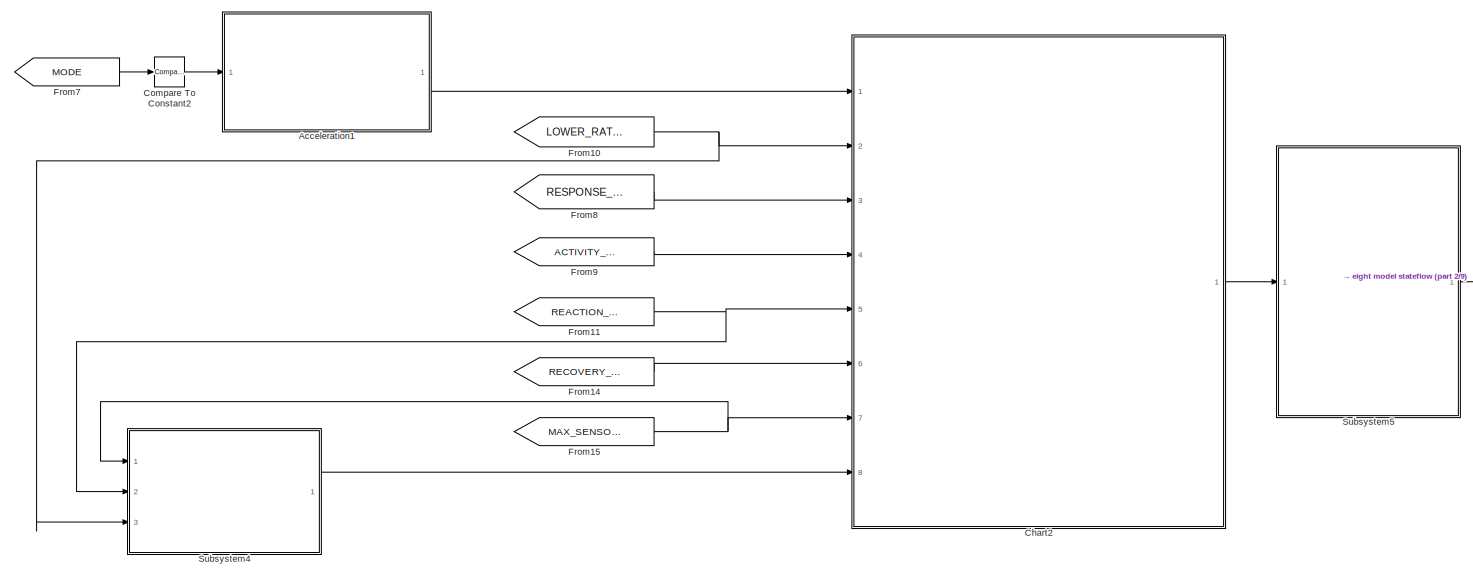
[diagram: root canvas - part 1/9, top center region]
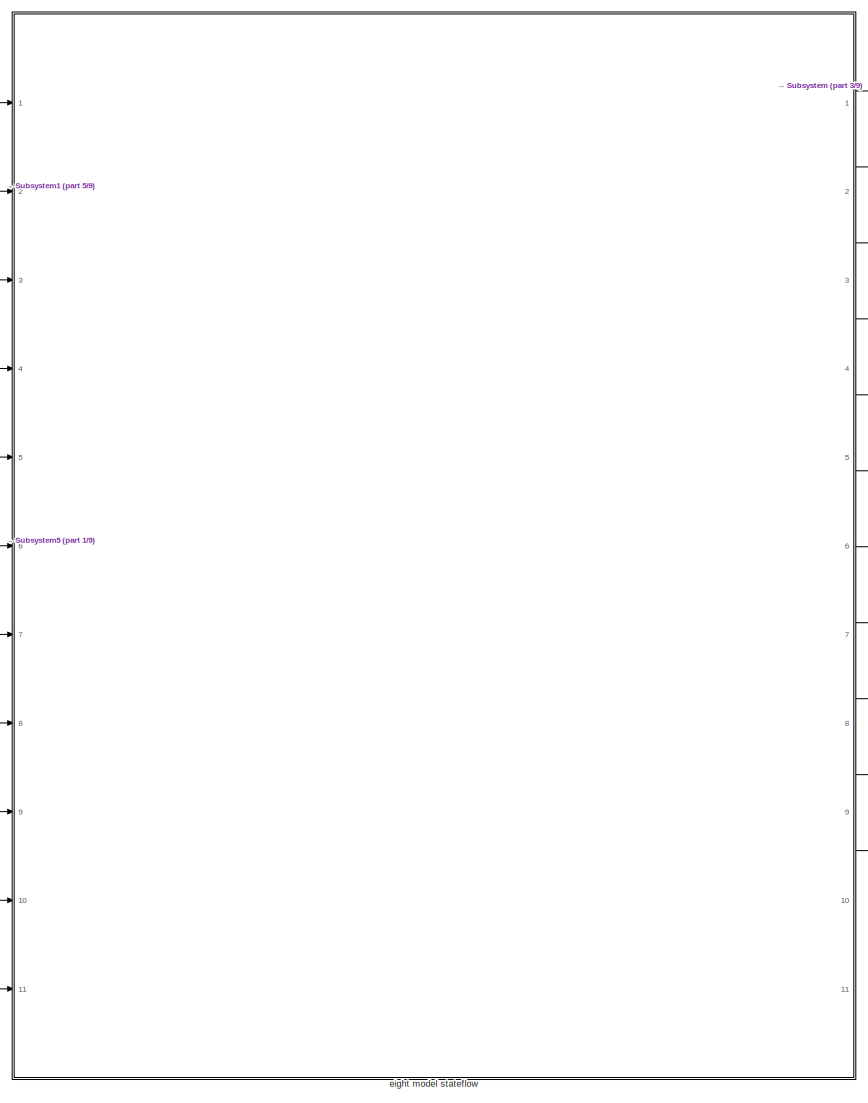
[diagram: root canvas - part 2/9, middle right region]
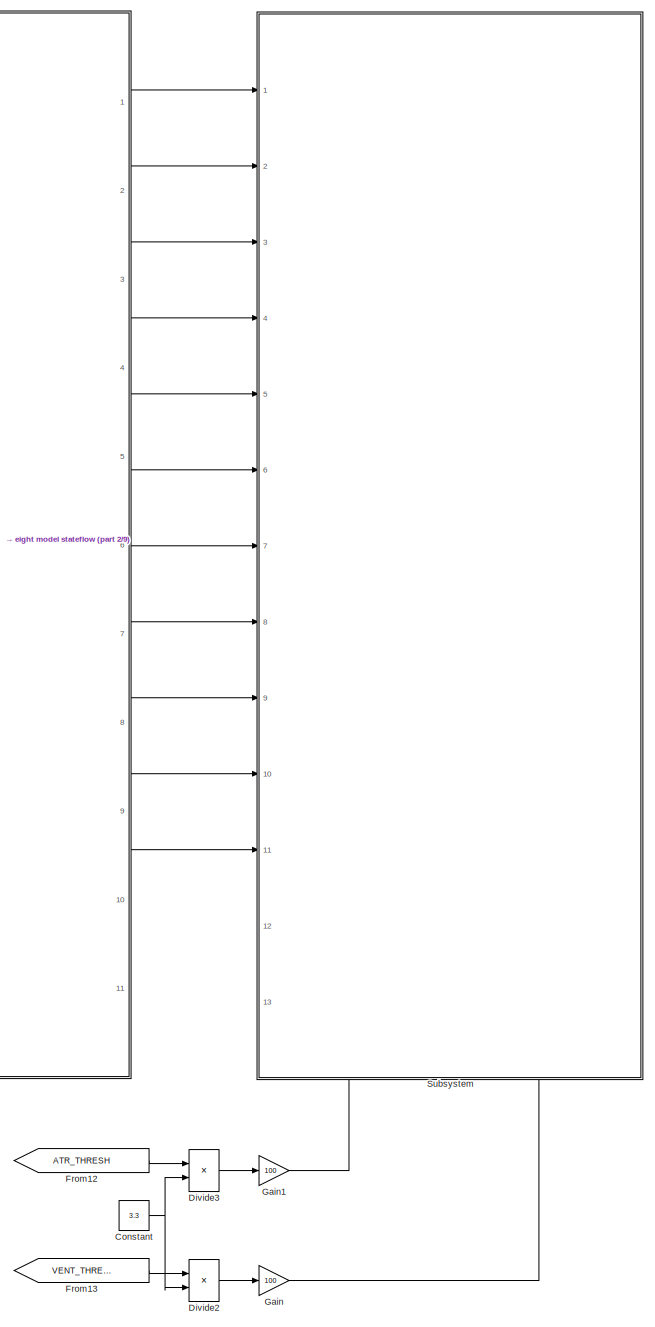
[diagram: root canvas - part 3/9, middle right region]
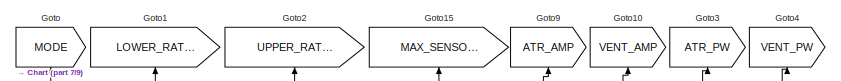
[diagram: root canvas - part 4/9, top left region]
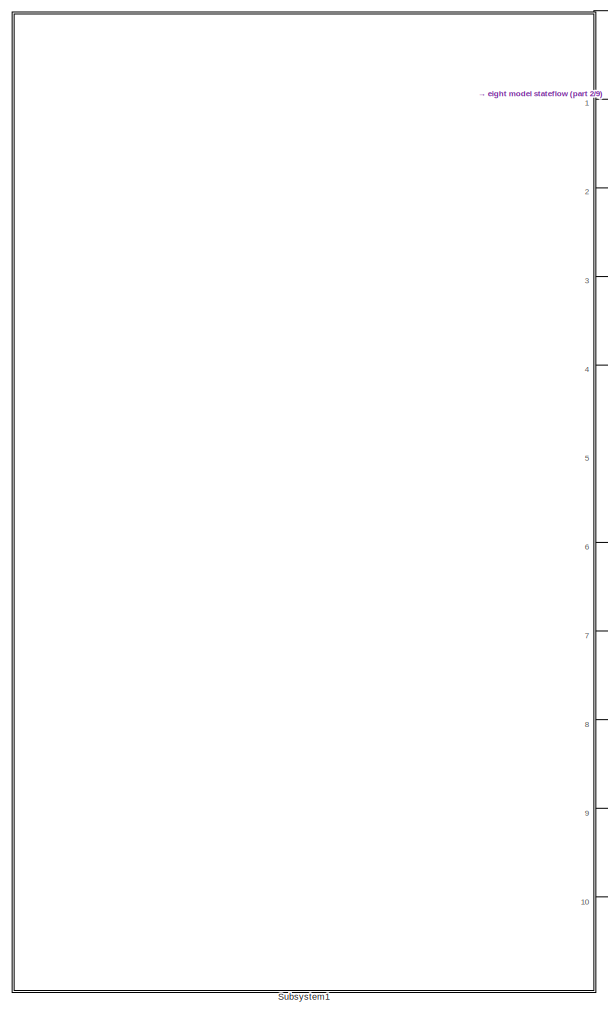
[diagram: root canvas - part 5/9, central region]
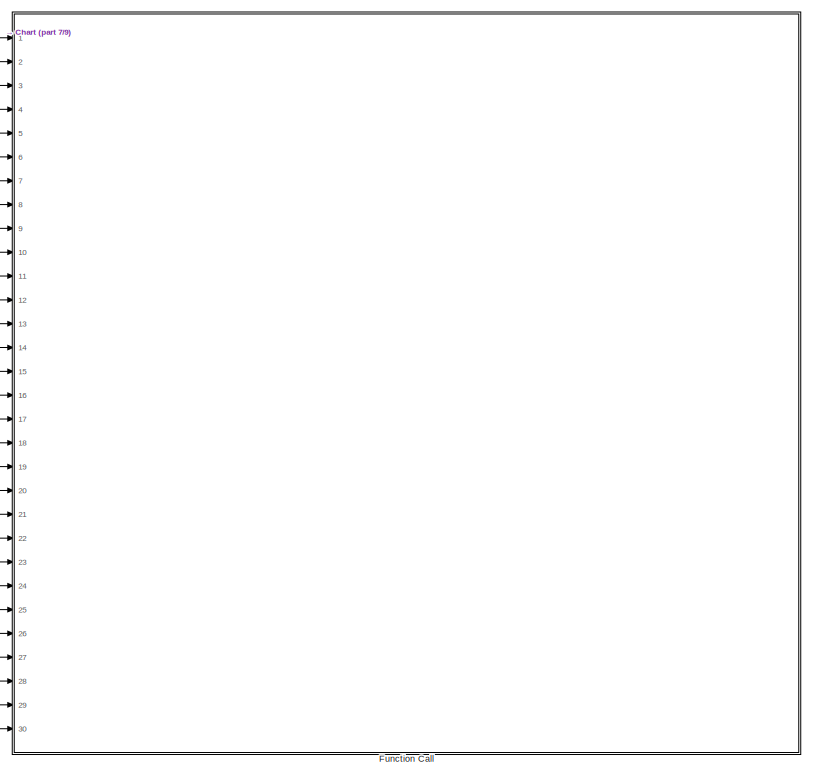
[diagram: root canvas - part 6/9, central region]
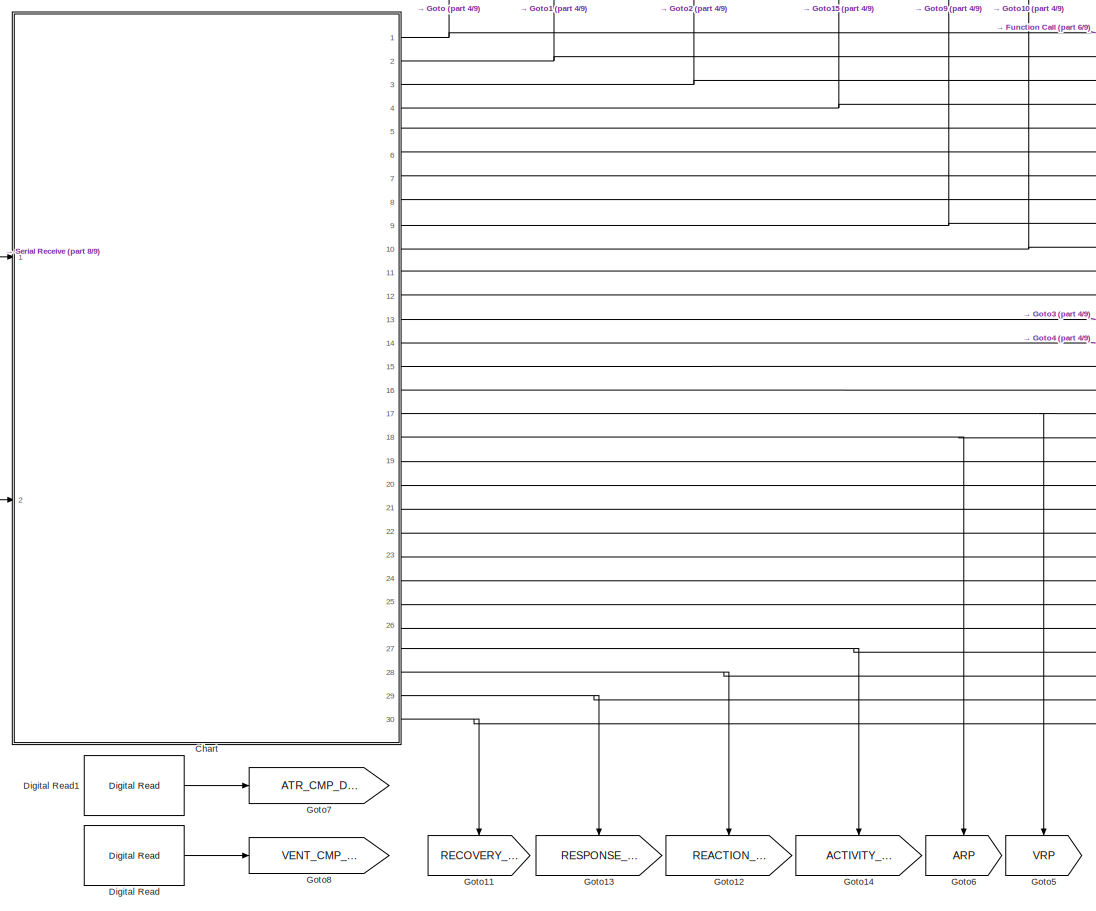
[diagram: root canvas - part 7/9, middle left region]
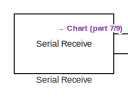
[diagram: root canvas - part 8/9, middle left region]
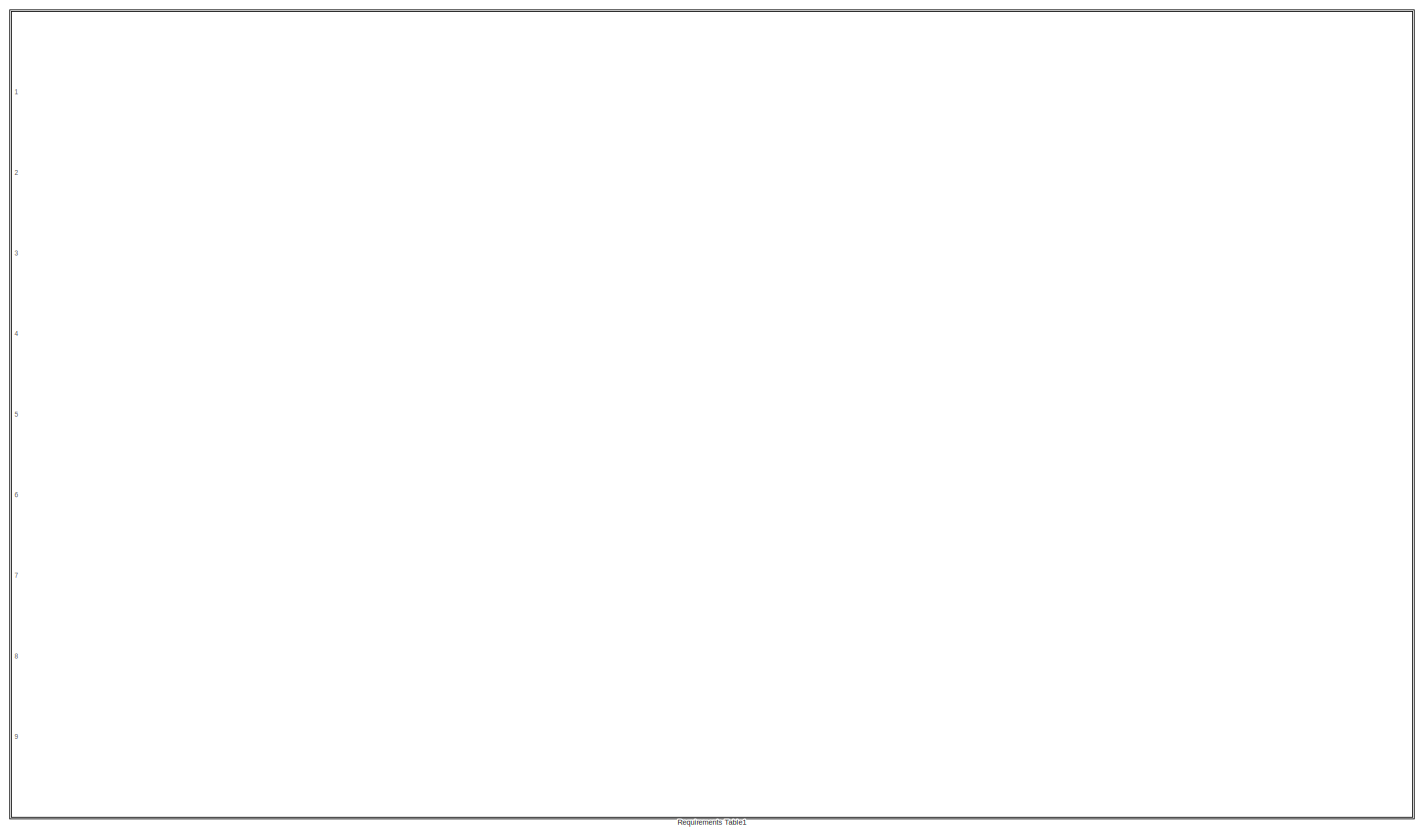
[diagram: root canvas - part 9/9, bottom center region]
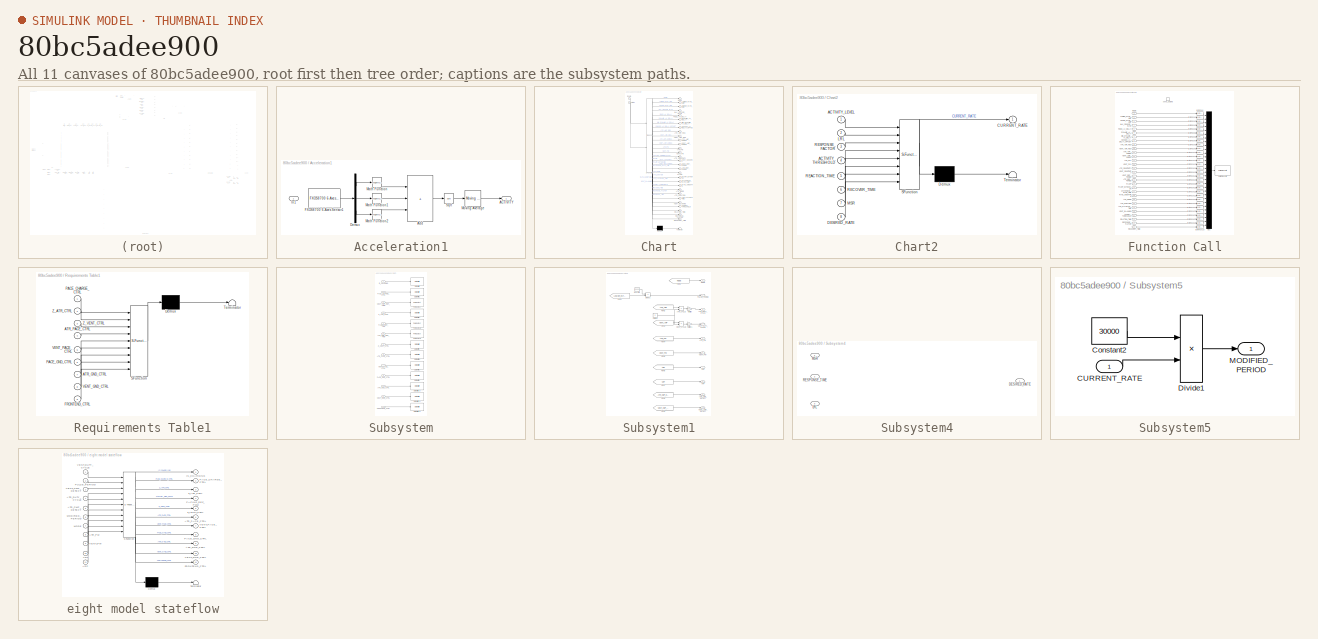
[diagram: thumbnail index - all 11 canvases of the model, root first then tree order]
MODEL slx_80bc5adee900
KIND model
CONFIG AbsTol = auto
CONFIG EnableMultiTasking = on
CONFIG FixedStep = 1e-3
CONFIG MaxStep = auto
CONFIG MinStep = auto
CONFIG RelTol = 1e-3
CONFIG SampleTimeConstraint = Unconstrained
CONFIG SolverName = FixedStepAuto
CONFIG StartTime = 0.0
CONFIG StopTime = 10.0
BLOCK [SubSystem] Acceleration1
  NameLocation = top
  Ports = [1, 1]
  RequestExecContextInheritance = off
BLOCK [Outport] Acceleration1/ACTIVITY
  SourceOfInitialOutputValue = Input signal
BLOCK [Sum] Acceleration1/Add
  IconShape = rectangular
  Inputs = +++
  Ports = [3, 1]
BLOCK [Demux] Acceleration1/Demux
  Outputs = 3
  Ports = [1, 3]
BLOCK [Reference] Acceleration1/FXOS8700 6-Axes Sensor1  REF=frdmk64flib/FXOS8700 6-Axes Sensor
  Ports = [0, 1]
  SourceBlock = frdmk64flib/FXOS8700 6-Axes Sensor
  SourceProductBaseCode = EC_FRDM_K64F
  SourceType = freedomk64f.fxos8700
BLOCK [Inport] Acceleration1/In1
BLOCK [Math] Acceleration1/Math Function
  Operator = magnitude^2
  OutDataTypeStr = double
  Ports = [1, 1]
  SignedPower = on
BLOCK [Math] Acceleration1/Math Function1
  Operator = magnitude^2
  OutDataTypeStr = double
  Ports = [1, 1]
  SignedPower = on
BLOCK [Math] Acceleration1/Math Function2
  Operator = magnitude^2
  OutDataTypeStr = double
  Ports = [1, 1]
  SignedPower = on
BLOCK [Reference] Acceleration1/Moving Average  REF=dspstat3/Moving
Average
  Ports = [1, 1]
  SourceBlock = dspstat3/Moving\nAverage
  SourceProductBaseCode = DS
  SourceType = dsp.simulink.MovingAverage
BLOCK [Sqrt] Acceleration1/Sqrt
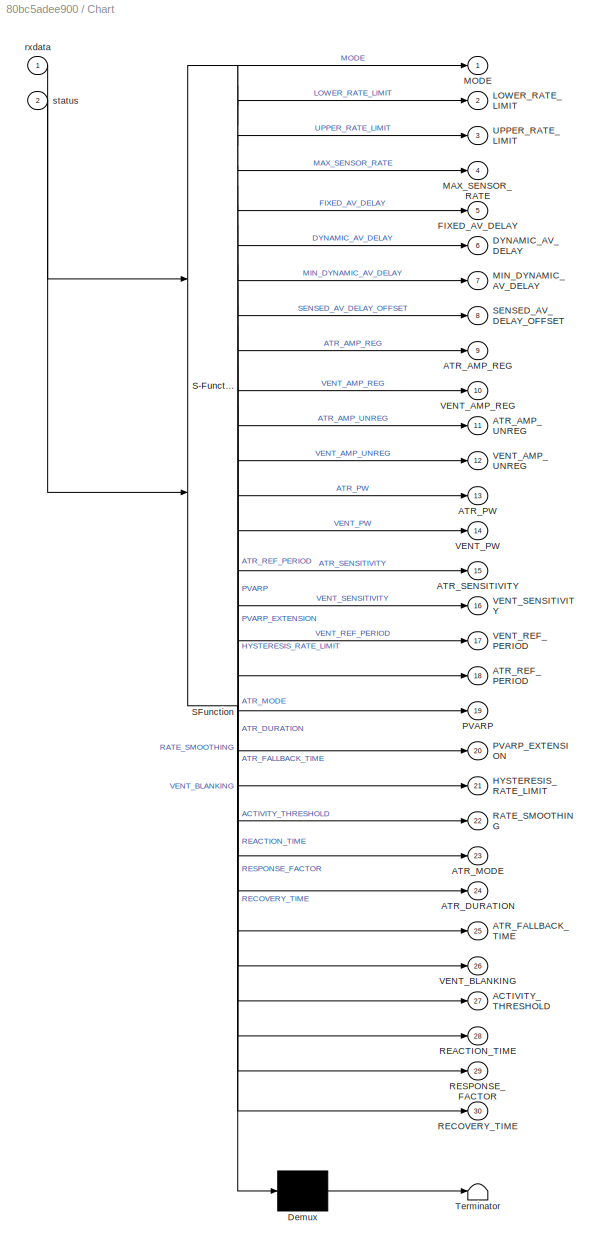
BLOCK [SubSystem] Chart
  ErrorFcn = Stateflow.Translate.translate
  PermitHierarchicalResolution = ExplicitOnly
  Ports = [2, 30]
  RequestExecContextInheritance = off
  SFBlockType = Chart
  TreatAsAtomicUnit = on
BLOCK [Demux] Chart/ Demux 
  Outputs = 1
  Ports = [1, 1]
BLOCK [S-Function] Chart/ SFunction 
  EnableBusSupport = off
  FunctionName = sf_sfun
  PortCounts = [2 31]
  Ports = [2, 31]
  SFcnIsStateOwnerBlock = off
  SFunctionDeploymentMode = off
  Tag = Stateflow S-Function 1
BLOCK [Terminator] Chart/ Terminator 
BLOCK [Outport] Chart/ACTIVITY_THRESHOLD
  Port = 27
BLOCK [Outport] Chart/ATR_AMP_REG
  Port = 9
BLOCK [Outport] Chart/ATR_AMP_UNREG
  Port = 11
BLOCK [Outport] Chart/ATR_DURATION
  Port = 24
BLOCK [Outport] Chart/ATR_FALLBACK_TIME
  Port = 25
BLOCK [Outport] Chart/ATR_MODE
  Port = 23
BLOCK [Outport] Chart/ATR_PW
  Port = 13
BLOCK [Outport] Chart/ATR_REF_PERIOD
  Port = 18
BLOCK [Outport] Chart/ATR_SENSITIVITY
  Port = 15
BLOCK [Outport] Chart/DYNAMIC_AV_DELAY
  Port = 6
BLOCK [Outport] Chart/FIXED_AV_DELAY
  Port = 5
BLOCK [Outport] Chart/HYSTERESIS_RATE_LIMIT
  Port = 21
BLOCK [Outport] Chart/LOWER_RATE_LIMIT
  Port = 2
BLOCK [Outport] Chart/MAX_SENSOR_RATE
  Port = 4
BLOCK [Outport] Chart/MIN_DYNAMIC_AV_DELAY
  Port = 7
BLOCK [Outport] Chart/MODE
BLOCK [Outport] Chart/PVARP
  Port = 19
BLOCK [Outport] Chart/PVARP_EXTENSION
  Port = 20
BLOCK [Outport] Chart/RATE_SMOOTHING
  Port = 22
BLOCK [Outport] Chart/REACTION_TIME
  Port = 28
BLOCK [Outport] Chart/RECOVERY_TIME
  Port = 30
BLOCK [Outport] Chart/RESPONSE_FACTOR
  Port = 29
BLOCK [Outport] Chart/SENSED_AV_DELAY_OFFSET
  Port = 8
BLOCK [Outport] Chart/UPPER_RATE_LIMIT
  Port = 3
BLOCK [Outport] Chart/VENT_AMP_REG
  Port = 10
BLOCK [Outport] Chart/VENT_AMP_UNREG
  Port = 12
BLOCK [Outport] Chart/VENT_BLANKING
  Port = 26
BLOCK [Outport] Chart/VENT_PW
  Port = 14
BLOCK [Outport] Chart/VENT_REF_PERIOD
  Port = 17
BLOCK [Outport] Chart/VENT_SENSITIVITY
  Port = 16
BLOCK [Inport] Chart/rxdata
BLOCK [Inport] Chart/status
  Port = 2
BLOCK [SubSystem] Chart2
  ErrorFcn = Stateflow.Translate.translate
  PermitHierarchicalResolution = ExplicitOnly
  Ports = [8, 1]
  RequestExecContextInheritance = off
  SFBlockType = Chart
  TreatAsAtomicUnit = on
BLOCK [Demux] Chart2/ Demux 
  Outputs = 1
  Ports = [1, 1]
BLOCK [S-Function] Chart2/ SFunction 
  EnableBusSupport = off
  FunctionName = sf_sfun
  PortCounts = [8 2]
  Ports = [8, 2]
  SFcnIsStateOwnerBlock = off
  SFunctionDeploymentMode = off
  Tag = Stateflow S-Function 5
BLOCK [Terminator] Chart2/ Terminator 
BLOCK [Inport] Chart2/ACTIVITY_LEVEL
BLOCK [Inport] Chart2/ACTIVITY_THRESHOLD
  Port = 4
BLOCK [Outport] Chart2/CURRENT_RATE
BLOCK [Inport] Chart2/DESIRED_RATE
  Port = 8
BLOCK [Inport] Chart2/LRL
  Port = 2
BLOCK [Inport] Chart2/MSR
  Port = 7
BLOCK [Inport] Chart2/REACTION_TIME
  Port = 5
BLOCK [Inport] Chart2/RECOVER_TIME
  Port = 6
BLOCK [Inport] Chart2/RESPONSE_FACTOR
  Port = 3
BLOCK [Reference] Compare To Constant2  REF=simulink/Logic and Bit
Operations/Compare
To Constant
  Ports = [1, 1]
  SourceBlock = simulink/Logic and Bit\nOperations/Compare\nTo Constant
  SourceProductBaseCode = SL
  SourceType = Compare To Constant
BLOCK [Constant] Constant
  Value = 3.3
BLOCK [Reference] Digital Read  REF=frdmk64flib/Digital Read
  Ports = [0, 1]
  SourceBlock = frdmk64flib/Digital Read
  SourceProductBaseCode = EC_FRDM_K64F
  SourceType = freedomk64f.DigitalRead
BLOCK [Reference] Digital Read1  REF=frdmk64flib/Digital Read
  Ports = [0, 1]
  SourceBlock = frdmk64flib/Digital Read
  SourceProductBaseCode = EC_FRDM_K64F
  SourceType = freedomk64f.DigitalRead
BLOCK [Product] Divide2
  Inputs = */
  Ports = [2, 1]
BLOCK [Product] Divide3
  Inputs = */
  Ports = [2, 1]
BLOCK [From] From10
  GotoTag = LOWER_RATE_LIMIT
  TagVisibility = global
BLOCK [From] From11
  GotoTag = REACTION_TIME
  TagVisibility = global
BLOCK [From] From12
  GotoTag = ATR_THRESH
  TagVisibility = global
BLOCK [From] From13
  GotoTag = VENT_THRESH
  TagVisibility = global
BLOCK [From] From14
  GotoTag = RECOVERY_TIME
  TagVisibility = global
BLOCK [From] From15
  GotoTag = MAX_SENSOR_RATE
  TagVisibility = global
BLOCK [From] From7
  GotoTag = MODE
BLOCK [From] From8
  GotoTag = RESPONSE_FACTOR
  TagVisibility = global
BLOCK [From] From9
  GotoTag = ACTIVITY_THRESHOLD
  TagVisibility = global
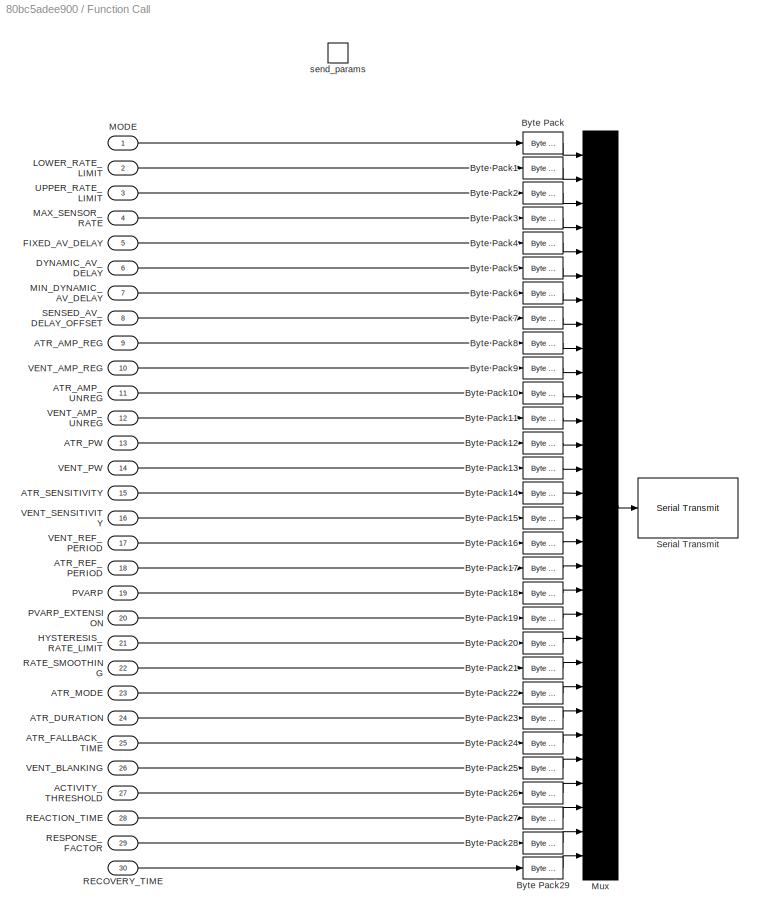
BLOCK [SubSystem] Function Call
  Ports = [30, 0, 0, 1]
  RequestExecContextInheritance = off
  TreatAsAtomicUnit = on
BLOCK [Inport] Function Call/ACTIVITY_THRESHOLD
  Port = 27
BLOCK [Inport] Function Call/ATR_AMP_REG
  Port = 9
BLOCK [Inport] Function Call/ATR_AMP_UNREG
  Port = 11
BLOCK [Inport] Function Call/ATR_DURATION
  Port = 24
BLOCK [Inport] Function Call/ATR_FALLBACK_TIME
  Port = 25
BLOCK [Inport] Function Call/ATR_MODE
  Port = 23
BLOCK [Inport] Function Call/ATR_PW
  Port = 13
BLOCK [Inport] Function Call/ATR_REF_PERIOD
  Port = 18
BLOCK [Inport] Function Call/ATR_SENSITIVITY
  Port = 15
BLOCK [Reference] Function Call/Byte Pack  REF=etargetslib/Byte Pack
  Ports = [1, 1]
  SourceBlock = etargetslib/Byte Pack
  SourceProductBaseCode = ME
  SourceType = Byte pack
BLOCK [Reference] Function Call/Byte Pack1  REF=etargetslib/Byte Pack
  Ports = [1, 1]
  SourceBlock = etargetslib/Byte Pack
  SourceProductBaseCode = ME
  SourceType = Byte pack
BLOCK [Reference] Function Call/Byte Pack10  REF=etargetslib/Byte Pack
  Ports = [1, 1]
  SourceBlock = etargetslib/Byte Pack
  SourceProductBaseCode = ME
  SourceType = Byte pack
BLOCK [Reference] Function Call/Byte Pack11  REF=etargetslib/Byte Pack
  Ports = [1, 1]
  SourceBlock = etargetslib/Byte Pack
  SourceProductBaseCode = ME
  SourceType = Byte pack
BLOCK [Reference] Function Call/Byte Pack12  REF=etargetslib/Byte Pack
  Ports = [1, 1]
  SourceBlock = etargetslib/Byte Pack
  SourceProductBaseCode = ME
  SourceType = Byte pack
BLOCK [Reference] Function Call/Byte Pack13  REF=etargetslib/Byte Pack
  Ports = [1, 1]
  SourceBlock = etargetslib/Byte Pack
  SourceProductBaseCode = ME
  SourceType = Byte pack
BLOCK [Reference] Function Call/Byte Pack14  REF=etargetslib/Byte Pack
  Ports = [1, 1]
  SourceBlock = etargetslib/Byte Pack
  SourceProductBaseCode = ME
  SourceType = Byte pack
BLOCK [Reference] Function Call/Byte Pack15  REF=etargetslib/Byte Pack
  Ports = [1, 1]
  SourceBlock = etargetslib/Byte Pack
  SourceProductBaseCode = ME
  SourceType = Byte pack
BLOCK [Reference] Function Call/Byte Pack16  REF=etargetslib/Byte Pack
  Ports = [1, 1]
  SourceBlock = etargetslib/Byte Pack
  SourceProductBaseCode = ME
  SourceType = Byte pack
BLOCK [Reference] Function Call/Byte Pack17  REF=etargetslib/Byte Pack
  Ports = [1, 1]
  SourceBlock = etargetslib/Byte Pack
  SourceProductBaseCode = ME
  SourceType = Byte pack
BLOCK [Reference] Function Call/Byte Pack18  REF=etargetslib/Byte Pack
  Ports = [1, 1]
  SourceBlock = etargetslib/Byte Pack
  SourceProductBaseCode = ME
  SourceType = Byte pack
BLOCK [Reference] Function Call/Byte Pack19  REF=etargetslib/Byte Pack
  Ports = [1, 1]
  SourceBlock = etargetslib/Byte Pack
  SourceProductBaseCode = ME
  SourceType = Byte pack
BLOCK [Reference] Function Call/Byte Pack2  REF=etargetslib/Byte Pack
  Ports = [1, 1]
  SourceBlock = etargetslib/Byte Pack
  SourceProductBaseCode = ME
  SourceType = Byte pack
BLOCK [Reference] Function Call/Byte Pack20  REF=etargetslib/Byte Pack
  Ports = [1, 1]
  SourceBlock = etargetslib/Byte Pack
  SourceProductBaseCode = ME
  SourceType = Byte pack
BLOCK [Reference] Function Call/Byte Pack21  REF=etargetslib/Byte Pack
  Ports = [1, 1]
  SourceBlock = etargetslib/Byte Pack
  SourceProductBaseCode = ME
  SourceType = Byte pack
BLOCK [Reference] Function Call/Byte Pack22  REF=etargetslib/Byte Pack
  Ports = [1, 1]
  SourceBlock = etargetslib/Byte Pack
  SourceProductBaseCode = ME
  SourceType = Byte pack
BLOCK [Reference] Function Call/Byte Pack23  REF=etargetslib/Byte Pack
  Ports = [1, 1]
  SourceBlock = etargetslib/Byte Pack
  SourceProductBaseCode = ME
  SourceType = Byte pack
BLOCK [Reference] Function Call/Byte Pack24  REF=etargetslib/Byte Pack
  Ports = [1, 1]
  SourceBlock = etargetslib/Byte Pack
  SourceProductBaseCode = ME
  SourceType = Byte pack
BLOCK [Reference] Function Call/Byte Pack25  REF=etargetslib/Byte Pack
  Ports = [1, 1]
  SourceBlock = etargetslib/Byte Pack
  SourceProductBaseCode = ME
  SourceType = Byte pack
BLOCK [Reference] Function Call/Byte Pack26  REF=etargetslib/Byte Pack
  Ports = [1, 1]
  SourceBlock = etargetslib/Byte Pack
  SourceProductBaseCode = ME
  SourceType = Byte pack
BLOCK [Reference] Function Call/Byte Pack27  REF=etargetslib/Byte Pack
  Ports = [1, 1]
  SourceBlock = etargetslib/Byte Pack
  SourceProductBaseCode = ME
  SourceType = Byte pack
BLOCK [Reference] Function Call/Byte Pack28  REF=etargetslib/Byte Pack
  Ports = [1, 1]
  SourceBlock = etargetslib/Byte Pack
  SourceProductBaseCode = ME
  SourceType = Byte pack
BLOCK [Reference] Function Call/Byte Pack29  REF=etargetslib/Byte Pack
  Ports = [1, 1]
  SourceBlock = etargetslib/Byte Pack
  SourceProductBaseCode = ME
  SourceType = Byte pack
BLOCK [Reference] Function Call/Byte Pack3  REF=etargetslib/Byte Pack
  Ports = [1, 1]
  SourceBlock = etargetslib/Byte Pack
  SourceProductBaseCode = ME
  SourceType = Byte pack
BLOCK [Reference] Function Call/Byte Pack4  REF=etargetslib/Byte Pack
  Ports = [1, 1]
  SourceBlock = etargetslib/Byte Pack
  SourceProductBaseCode = ME
  SourceType = Byte pack
BLOCK [Reference] Function Call/Byte Pack5  REF=etargetslib/Byte Pack
  Ports = [1, 1]
  SourceBlock = etargetslib/Byte Pack
  SourceProductBaseCode = ME
  SourceType = Byte pack
BLOCK [Reference] Function Call/Byte Pack6  REF=etargetslib/Byte Pack
  Ports = [1, 1]
  SourceBlock = etargetslib/Byte Pack
  SourceProductBaseCode = ME
  SourceType = Byte pack
BLOCK [Reference] Function Call/Byte Pack7  REF=etargetslib/Byte Pack
  Ports = [1, 1]
  SourceBlock = etargetslib/Byte Pack
  SourceProductBaseCode = ME
  SourceType = Byte pack
BLOCK [Reference] Function Call/Byte Pack8  REF=etargetslib/Byte Pack
  Ports = [1, 1]
  SourceBlock = etargetslib/Byte Pack
  SourceProductBaseCode = ME
  SourceType = Byte pack
BLOCK [Reference] Function Call/Byte Pack9  REF=etargetslib/Byte Pack
  Ports = [1, 1]
  SourceBlock = etargetslib/Byte Pack
  SourceProductBaseCode = ME
  SourceType = Byte pack
BLOCK [Inport] Function Call/DYNAMIC_AV_DELAY
  Port = 6
BLOCK [Inport] Function Call/FIXED_AV_DELAY
  Port = 5
BLOCK [Inport] Function Call/HYSTERESIS_RATE_LIMIT
  Port = 21
BLOCK [Inport] Function Call/LOWER_RATE_LIMIT
  Port = 2
BLOCK [Inport] Function Call/MAX_SENSOR_RATE
  Port = 4
BLOCK [Inport] Function Call/MIN_DYNAMIC_AV_DELAY
  Port = 7
BLOCK [Inport] Function Call/MODE
BLOCK [Mux] Function Call/Mux
  DisplayOption = bar
  Inputs = 30
  Ports = [30, 1]
BLOCK [Inport] Function Call/PVARP
  Port = 19
BLOCK [Inport] Function Call/PVARP_EXTENSION
  Port = 20
BLOCK [Inport] Function Call/RATE_SMOOTHING
  Port = 22
BLOCK [Inport] Function Call/REACTION_TIME
  Port = 28
BLOCK [Inport] Function Call/RECOVERY_TIME
  Port = 30
BLOCK [Inport] Function Call/RESPONSE_FACTOR
  Port = 29
BLOCK [Inport] Function Call/SENSED_AV_DELAY_OFFSET
  Port = 8
BLOCK [Reference] Function Call/Serial Transmit  REF=frdmk64flib/Serial Transmit
  Ports = [1]
  SourceBlock = frdmk64flib/Serial Transmit
  SourceProductBaseCode = EC_FRDM_K64F
  SourceType = freedomk64f.SCIWrite
BLOCK [Inport] Function Call/UPPER_RATE_LIMIT
  Port = 3
BLOCK [Inport] Function Call/VENT_AMP_REG
  Port = 10
BLOCK [Inport] Function Call/VENT_AMP_UNREG
  Port = 12
BLOCK [Inport] Function Call/VENT_BLANKING
  Port = 26
BLOCK [Inport] Function Call/VENT_PW
  Port = 14
BLOCK [Inport] Function Call/VENT_REF_PERIOD
  Port = 17
BLOCK [Inport] Function Call/VENT_SENSITIVITY
  Port = 16
BLOCK [TriggerPort] Function Call/send_params
  FunctionName = send_params
  IsSimulinkFunction = on
  Ports = []
  StatesWhenEnabling = held
  TriggerType = function-call
  VariantControl = Variant
BLOCK [Gain] Gain
  Gain = 100
BLOCK [Gain] Gain1
  Gain = 100
BLOCK [Goto] Goto
  GotoTag = MODE
  IconDisplay = Signal name
  NameLocation = right
  TagVisibility = global
BLOCK [Goto] Goto1
  GotoTag = LOWER_RATE_LIMIT
  IconDisplay = Signal name
  NameLocation = right
  TagVisibility = global
BLOCK [Goto] Goto10
  GotoTag = VENT_AMP
  IconDisplay = Signal name
  NameLocation = right
  TagVisibility = global
BLOCK [Goto] Goto11
  GotoTag = RECOVERY_TIME
  IconDisplay = Signal name
  NameLocation = left
  TagVisibility = global
BLOCK [Goto] Goto12
  GotoTag = REACTION_TIME
  IconDisplay = Signal name
  NameLocation = left
  TagVisibility = global
BLOCK [Goto] Goto13
  GotoTag = RESPONSE_FACTOR
  IconDisplay = Signal name
  NameLocation = left
  TagVisibility = global
BLOCK [Goto] Goto14
  GotoTag = ACTIVITY_THRESHOLD
  IconDisplay = Signal name
  NameLocation = left
  TagVisibility = global
BLOCK [Goto] Goto15
  GotoTag = MAX_SENSOR_RATE
  IconDisplay = Signal name
  NameLocation = right
  TagVisibility = global
BLOCK [Goto] Goto2
  GotoTag = UPPER_RATE_LIMIT
  IconDisplay = Signal name
  NameLocation = right
  TagVisibility = global
BLOCK [Goto] Goto3
  GotoTag = ATR_PW
  IconDisplay = Signal name
  NameLocation = right
  TagVisibility = global
BLOCK [Goto] Goto4
  GotoTag = VENT_PW
  IconDisplay = Signal name
  NameLocation = right
  TagVisibility = global
BLOCK [Goto] Goto5
  GotoTag = VRP
  IconDisplay = Signal name
  NameLocation = left
  TagVisibility = global
BLOCK [Goto] Goto6
  GotoTag = ARP
  IconDisplay = Signal name
  NameLocation = left
  TagVisibility = global
BLOCK [Goto] Goto7
  GotoTag = ATR_CMP_DETECT
  IconDisplay = Signal name
  TagVisibility = global
BLOCK [Goto] Goto8
  GotoTag = VENT_CMP_DETECT
  IconDisplay = Signal name
  TagVisibility = global
BLOCK [Goto] Goto9
  GotoTag = ATR_AMP
  IconDisplay = Signal name
  NameLocation = right
  TagVisibility = global
BLOCK [SubSystem] Requirements Table1
  ErrorFcn = Stateflow.Translate.translate
  PermitHierarchicalResolution = ExplicitOnly
  Ports = [9]
  RequestExecContextInheritance = off
  SFBlockType = Requirements Table
  TreatAsAtomicUnit = on
BLOCK [Demux] Requirements Table1/ Demux 
  Outputs = 1
  Ports = [1, 1]
BLOCK [S-Function] Requirements Table1/ SFunction 
  EnableBusSupport = on
  FunctionName = sf_sfun
  PortCounts = [9 1]
  Ports = [9, 1]
  SFcnIsStateOwnerBlock = off
  SFunctionDeploymentMode = off
  Tag = Stateflow S-Function 2
BLOCK [Terminator] Requirements Table1/ Terminator 
BLOCK [Inport] Requirements Table1/ATR_GND_CTRL
  Port = 7
BLOCK [Inport] Requirements Table1/ATR_PACE_CTRL
  Port = 4
BLOCK [Inport] Requirements Table1/FRONTEND_CTRL
  Port = 9
BLOCK [Inport] Requirements Table1/PACE_CHARGE_CTRL
BLOCK [Inport] Requirements Table1/PACE_GND_CTRL
  Port = 6
BLOCK [Inport] Requirements Table1/VENT_GND_CTRL
  Port = 8
BLOCK [Inport] Requirements Table1/VENT_PACE_CTRL
  Port = 5
BLOCK [Inport] Requirements Table1/Z_ATR_CTRL
  Port = 2
BLOCK [Inport] Requirements Table1/Z_VENT_CTRL
  Port = 3
BLOCK [Reference] Serial Receive  REF=frdmk64flib/Serial Receive
  Ports = [0, 2]
  SourceBlock = frdmk64flib/Serial Receive
  SourceProductBaseCode = EC_FRDM_K64F
  SourceType = freedomk64f.SCIRead
BLOCK [SubSystem] Subsystem
  PortSchema = {"entries":[{"content":{"sides":[{"content":{"connectorIds":["In1","In2","In3","In4","In5","In6","In7","In8","In9","In10","In11"]},"type":"ConnectorPlacement.EquallySpacedRectSide","uuid":"cf431d19-a261-4061-b975-82ab8e4554ba"},{"content":{"connectorIds":[],"side":"RIGHT"},"type":"ConnectorPlacement.EquallySpacedRectSide","uuid":"d9d96e0a-6018-4f8e-a98f-6eed3a91414e"},{"content":{"connectorIds":[]...<+453ch>
  Ports = [13]
  RequestExecContextInheritance = off
BLOCK [Inport] Subsystem/ATR_CMP_REF_PWM
  Port = 12
BLOCK [Inport] Subsystem/ATR_GND_CTRL
  Port = 9
BLOCK [Inport] Subsystem/ATR_PACE_CTRL
  Port = 6
BLOCK [Reference] Subsystem/Digital Write  REF=frdmk64flib/Digital Write
  Ports = [1]
  SourceBlock = frdmk64flib/Digital Write
  SourceProductBaseCode = EC_FRDM_K64F
  SourceType = freedomk64f.DigitalWrite
BLOCK [Reference] Subsystem/Digital Write1  REF=frdmk64flib/Digital Write
  Ports = [1]
  SourceBlock = frdmk64flib/Digital Write
  SourceProductBaseCode = EC_FRDM_K64F
  SourceType = freedomk64f.DigitalWrite
BLOCK [Reference] Subsystem/Digital Write10  REF=frdmk64flib/Digital Write
  Ports = [1]
  SourceBlock = frdmk64flib/Digital Write
  SourceProductBaseCode = EC_FRDM_K64F
  SourceType = freedomk64f.DigitalWrite
BLOCK [Reference] Subsystem/Digital Write11  REF=frdmk64flib/Digital Write
  Ports = [1]
  SourceBlock = frdmk64flib/Digital Write
  SourceProductBaseCode = EC_FRDM_K64F
  SourceType = freedomk64f.DigitalWrite
BLOCK [Reference] Subsystem/Digital Write12  REF=frdmk64flib/Digital Write
  Ports = [1]
  SourceBlock = frdmk64flib/Digital Write
  SourceProductBaseCode = EC_FRDM_K64F
  SourceType = freedomk64f.DigitalWrite
BLOCK [Reference] Subsystem/Digital Write2  REF=frdmk64flib/Digital Write
  Ports = [1]
  SourceBlock = frdmk64flib/Digital Write
  SourceProductBaseCode = EC_FRDM_K64F
  SourceType = freedomk64f.DigitalWrite
BLOCK [Reference] Subsystem/Digital Write4  REF=frdmk64flib/Digital Write
  Ports = [1]
  SourceBlock = frdmk64flib/Digital Write
  SourceProductBaseCode = EC_FRDM_K64F
  SourceType = freedomk64f.DigitalWrite
BLOCK [Reference] Subsystem/Digital Write7  REF=frdmk64flib/Digital Write
  Ports = [1]
  SourceBlock = frdmk64flib/Digital Write
  SourceProductBaseCode = EC_FRDM_K64F
  SourceType = freedomk64f.DigitalWrite
BLOCK [Reference] Subsystem/Digital Write8  REF=frdmk64flib/Digital Write
  Ports = [1]
  SourceBlock = frdmk64flib/Digital Write
  SourceProductBaseCode = EC_FRDM_K64F
  SourceType = freedomk64f.DigitalWrite
BLOCK [Reference] Subsystem/Digital Write9  REF=frdmk64flib/Digital Write
  Ports = [1]
  SourceBlock = frdmk64flib/Digital Write
  SourceProductBaseCode = EC_FRDM_K64F
  SourceType = freedomk64f.DigitalWrite
BLOCK [Inport] Subsystem/FRONTEND_CTRL
  Port = 11
BLOCK [Inport] Subsystem/IS_CHARGING
BLOCK [Inport] Subsystem/PACE_CHARGE_CTRL
  Port = 2
BLOCK [Inport] Subsystem/PACE_GND_CTRL
  Port = 8
BLOCK [Inport] Subsystem/PACING_REF_PWM
  Port = 4
BLOCK [Reference] Subsystem/PWM Output  REF=frdmk64flib/PWM Output
  Ports = [1]
  SourceBlock = frdmk64flib/PWM Output
  SourceProductBaseCode = EC_FRDM_K64F
  SourceType = freedomk64f.PWMOutput
BLOCK [Reference] Subsystem/PWM Output1  REF=frdmk64flib/PWM Output
  Ports = [1]
  SourceBlock = frdmk64flib/PWM Output
  SourceProductBaseCode = EC_FRDM_K64F
  SourceType = freedomk64f.PWMOutput
BLOCK [Reference] Subsystem/PWM Output2  REF=frdmk64flib/PWM Output
  Ports = [1]
  SourceBlock = frdmk64flib/PWM Output
  SourceProductBaseCode = EC_FRDM_K64F
  SourceType = freedomk64f.PWMOutput
BLOCK [Inport] Subsystem/VENT_CMP_REF_PWM
  Port = 13
BLOCK [Inport] Subsystem/VENT_GND_CTRL
  Port = 10
BLOCK [Inport] Subsystem/VENT_PACE_CTRL
  Port = 7
BLOCK [Inport] Subsystem/Z_ATR_CTRL
  Port = 3
BLOCK [Inport] Subsystem/Z_VENT_CTRL
  Port = 5
BLOCK [SubSystem] Subsystem1
  Ports = [0, 10]
  RequestExecContextInheritance = off
BLOCK [Outport] Subsystem1/ARP
  Port = 7
BLOCK [Outport] Subsystem1/ATR_CMP_DETECT
  Port = 9
BLOCK [Product] Subsystem1/ATR_CYCLE
  Inputs = */
  Ports = [2, 1]
BLOCK [Outport] Subsystem1/ATR_DUTY_CYCLE
  Port = 3
BLOCK [Outport] Subsystem1/ATR_PW
  Port = 5
BLOCK [Product] Subsystem1/Divide1
  Inputs = */
  Ports = [2, 1]
BLOCK [From] Subsystem1/From0
  GotoTag = MODE
  TagVisibility = global
BLOCK [From] Subsystem1/From1
  GotoTag = LOWER_RATE_LIMIT
  TagVisibility = global
BLOCK [From] Subsystem1/From2
  GotoTag = ATR_AMP
  TagVisibility = global
BLOCK [From] Subsystem1/From3
  GotoTag = VENT_AMP
  TagVisibility = global
BLOCK [From] Subsystem1/From4
  GotoTag = ATR_PW
  TagVisibility = global
BLOCK [From] Subsystem1/From5
  GotoTag = VENT_PW
  TagVisibility = global
BLOCK [From] Subsystem1/From6
  GotoTag = ARP
  TagVisibility = global
BLOCK [From] Subsystem1/From7
  GotoTag = VRP
  TagVisibility = global
BLOCK [From] Subsystem1/From8
  GotoTag = ATR_CMP_DETECT
  TagVisibility = global
BLOCK [From] Subsystem1/From9
  GotoTag = VENT_CMP_DETECT
  TagVisibility = global
BLOCK [Outport] Subsystem1/MODE
BLOCK [Gain] Subsystem1/Multiply
  Gain = 100
BLOCK [Gain] Subsystem1/Multiply1
  Gain = 100
BLOCK [Outport] Subsystem1/PULSE_PERIOD
  Port = 2
BLOCK [Outport] Subsystem1/VENT_CMP_DETECT
  Port = 10
BLOCK [Product] Subsystem1/VENT_CYCLE
  Inputs = */
  Ports = [2, 1]
BLOCK [Outport] Subsystem1/VENT_DUTY_CYCLE
  Port = 4
BLOCK [Outport] Subsystem1/VENT_PW
  Port = 6
BLOCK [Outport] Subsystem1/VRP
  Port = 8
BLOCK [Constant] Subsystem1/Voltage
  Value = 5
BLOCK [Constant] Subsystem1/msec//min
  LockScale = on
  OutDataTypeStr = double
  Value = 60000
BLOCK [SubSystem] Subsystem4
  Ports = [3, 1]
  RequestExecContextInheritance = off
BLOCK [Outport] Subsystem4/DESIRED_RATE
BLOCK [Inport] Subsystem4/LRL
  Port = 3
BLOCK [Inport] Subsystem4/MSR
BLOCK [Inport] Subsystem4/RESPONSE_TIME
  Port = 2
BLOCK [SubSystem] Subsystem5
  Ports = [1, 1]
  RequestExecContextInheritance = off
BLOCK [Inport] Subsystem5/CURRENT_RATE
BLOCK [Constant] Subsystem5/Constant2
  Value = 30000
BLOCK [Product] Subsystem5/Divide1
  Inputs = */
  Ports = [2, 1]
BLOCK [Outport] Subsystem5/MODIFIED_PERIOD
BLOCK [SubSystem] eight model stateflow
  ErrorFcn = Stateflow.Translate.translate
  PermitHierarchicalResolution = ExplicitOnly
  PortSchema = {"entries":[{"content":{"sides":[{"content":{"connectorIds":["In6","In7","In2","In4","In1","In8","In9","In11","In10","In5","In3"]},"type":"ConnectorPlacement.EquallySpacedRectSide","uuid":"7bd189cb-d286-447b-b347-38d7b12e59ee"},{"content":{"connectorIds":["Out1","Out2","Out3","Out4","Out5","Out6","Out7","Out8","Out9","Out10","Out11"],"side":"RIGHT"},"type":"ConnectorPlacement.EquallySpacedRectSide...<+374ch>
  Ports = [11, 11]
  RequestExecContextInheritance = off
  SFBlockType = Chart
  TreatAsAtomicUnit = on
BLOCK [Demux] eight model stateflow/ Demux 
  Outputs = 1
  Ports = [1, 1]
BLOCK [S-Function] eight model stateflow/ SFunction 
  EnableBusSupport = on
  FunctionName = sf_sfun
  PortCounts = [11 12]
  Ports = [11, 12]
  SFcnIsStateOwnerBlock = off
  SFunctionDeploymentMode = off
  Tag = Stateflow S-Function 3
BLOCK [Terminator] eight model stateflow/ Terminator 
BLOCK [Inport] eight model stateflow/ARP
  Port = 11
BLOCK [Inport] eight model stateflow/ATR_CMP_DETECT
  Port = 5
BLOCK [Inport] eight model stateflow/ATR_DUTY_CYCLE
  Port = 4
BLOCK [Outport] eight model stateflow/ATR_GND_CTRL
  Port = 9
BLOCK [Outport] eight model stateflow/ATR_PACE_CTRL
  Port = 6
BLOCK [Inport] eight model stateflow/ATR_PW
  Port = 8
BLOCK [Outport] eight model stateflow/FRONTEND_CTRL
  Port = 11
BLOCK [Outport] eight model stateflow/IS_CHARGING
BLOCK [Inport] eight model stateflow/MODE
  Port = 7
BLOCK [Inport] eight model stateflow/MODIFIED_PERIOD
  Port = 6
BLOCK [Outport] eight model stateflow/PACE_CHARGE_CTRL
  Port = 2
BLOCK [Outport] eight model stateflow/PACE_GND_CTRL
  Port = 8
BLOCK [Outport] eight model stateflow/PACING_REF_PWM
  Port = 4
BLOCK [Inport] eight model stateflow/PULSE_PERIOD
  Port = 2
BLOCK [Inport] eight model stateflow/VENT_CMP_DETECT
  Port = 3
BLOCK [Inport] eight model stateflow/VENT_DUTY_CYCLE
BLOCK [Outport] eight model stateflow/VENT_GND_CTRL
  Port = 10
BLOCK [Outport] eight model stateflow/VENT_PACE_CTRL
  Port = 7
BLOCK [Inport] eight model stateflow/VENT_PW
  Port = 9
BLOCK [Inport] eight model stateflow/VRP
  Port = 10
BLOCK [Outport] eight model stateflow/Z_ATR_CTRL
  Port = 3
BLOCK [Outport] eight model stateflow/Z_VENT_CTRL
  Port = 5
LINE Acceleration1/Add:1 -> Acceleration1/Sqrt:1
LINE Acceleration1/Demux:1 -> Acceleration1/Math Function:1
LINE Acceleration1/Demux:2 -> Acceleration1/Math Function1:1
LINE Acceleration1/Demux:3 -> Acceleration1/Math Function2:1
LINE Acceleration1/FXOS8700 6-Axes Sensor1:1 -> Acceleration1/Demux:1
LINE Acceleration1/Math Function1:1 -> Acceleration1/Add:2
LINE Acceleration1/Math Function2:1 -> Acceleration1/Add:3
LINE Acceleration1/Math Function:1 -> Acceleration1/Add:1
LINE Acceleration1/Moving Average:1 -> Acceleration1/ACTIVITY:1
LINE Acceleration1/Sqrt:1 -> Acceleration1/Moving Average:1
LINE Acceleration1:1 -> Chart2:1
LINE Chart2:1 -> Subsystem5:1
NET Chart:1 -> Function Call:1, Goto:1
NET Chart:10 -> Function Call:10, Goto10:1
LINE Chart:11 -> Function Call:11
LINE Chart:12 -> Function Call:12
NET Chart:13 -> Function Call:13, Goto3:1
NET Chart:14 -> Function Call:14, Goto4:1
LINE Chart:15 -> Function Call:15
LINE Chart:16 -> Function Call:16
NET Chart:17 -> Function Call:17, Goto5:1
NET Chart:18 -> Function Call:18, Goto6:1
LINE Chart:19 -> Function Call:19
NET Chart:2 -> Function Call:2, Goto1:1
LINE Chart:20 -> Function Call:20
LINE Chart:21 -> Function Call:21
LINE Chart:22 -> Function Call:22
LINE Chart:23 -> Function Call:23
LINE Chart:24 -> Function Call:24
LINE Chart:25 -> Function Call:25
LINE Chart:26 -> Function Call:26
NET Chart:27 -> Function Call:27, Goto14:1
NET Chart:28 -> Function Call:28, Goto12:1
NET Chart:29 -> Function Call:29, Goto13:1
NET Chart:3 -> Function Call:3, Goto2:1
NET Chart:30 -> Function Call:30, Goto11:1
NET Chart:4 -> Function Call:4, Goto15:1
LINE Chart:5 -> Function Call:5
LINE Chart:6 -> Function Call:6
LINE Chart:7 -> Function Call:7
LINE Chart:8 -> Function Call:8
NET Chart:9 -> Function Call:9, Goto9:1
LINE Compare To Constant2:1 -> Acceleration1:1
NET Constant:1 -> Divide2:2, Divide3:2
LINE Digital Read1:1 -> Goto7:1
LINE Digital Read:1 -> Goto8:1
LINE Divide2:1 -> Gain:1
LINE Divide3:1 -> Gain1:1
NET From10:1 -> Chart2:2, Subsystem4:3
NET From11:1 -> Chart2:5, Subsystem4:2
LINE From12:1 -> Divide3:1
LINE From13:1 -> Divide2:1
LINE From14:1 -> Chart2:6
NET From15:1 -> Chart2:7, Subsystem4:1
LINE From7:1 -> Compare To Constant2:1
LINE From8:1 -> Chart2:3
LINE From9:1 -> Chart2:4
LINE Function Call/ACTIVITY_THRESHOLD:1 -> Function Call/Byte Pack26:1
LINE Function Call/ATR_AMP_REG:1 -> Function Call/Byte Pack8:1
LINE Function Call/ATR_AMP_UNREG:1 -> Function Call/Byte Pack10:1
LINE Function Call/ATR_DURATION:1 -> Function Call/Byte Pack23:1
LINE Function Call/ATR_FALLBACK_TIME:1 -> Function Call/Byte Pack24:1
LINE Function Call/ATR_MODE:1 -> Function Call/Byte Pack22:1
LINE Function Call/ATR_PW:1 -> Function Call/Byte Pack12:1
LINE Function Call/ATR_REF_PERIOD:1 -> Function Call/Byte Pack17:1
LINE Function Call/ATR_SENSITIVITY:1 -> Function Call/Byte Pack14:1
LINE Function Call/Byte Pack10:1 -> Function Call/Mux:11
LINE Function Call/Byte Pack11:1 -> Function Call/Mux:12
LINE Function Call/Byte Pack12:1 -> Function Call/Mux:13
LINE Function Call/Byte Pack13:1 -> Function Call/Mux:14
LINE Function Call/Byte Pack14:1 -> Function Call/Mux:15
LINE Function Call/Byte Pack15:1 -> Function Call/Mux:16
LINE Function Call/Byte Pack16:1 -> Function Call/Mux:17
LINE Function Call/Byte Pack17:1 -> Function Call/Mux:18
LINE Function Call/Byte Pack18:1 -> Function Call/Mux:19
LINE Function Call/Byte Pack19:1 -> Function Call/Mux:20
LINE Function Call/Byte Pack1:1 -> Function Call/Mux:2
LINE Function Call/Byte Pack20:1 -> Function Call/Mux:21
LINE Function Call/Byte Pack21:1 -> Function Call/Mux:22
LINE Function Call/Byte Pack22:1 -> Function Call/Mux:23
LINE Function Call/Byte Pack23:1 -> Function Call/Mux:24
LINE Function Call/Byte Pack24:1 -> Function Call/Mux:25
LINE Function Call/Byte Pack25:1 -> Function Call/Mux:26
LINE Function Call/Byte Pack26:1 -> Function Call/Mux:27
LINE Function Call/Byte Pack27:1 -> Function Call/Mux:28
LINE Function Call/Byte Pack28:1 -> Function Call/Mux:29
LINE Function Call/Byte Pack29:1 -> Function Call/Mux:30
LINE Function Call/Byte Pack2:1 -> Function Call/Mux:3
LINE Function Call/Byte Pack3:1 -> Function Call/Mux:4
LINE Function Call/Byte Pack4:1 -> Function Call/Mux:5
LINE Function Call/Byte Pack5:1 -> Function Call/Mux:6
LINE Function Call/Byte Pack6:1 -> Function Call/Mux:7
LINE Function Call/Byte Pack7:1 -> Function Call/Mux:8
LINE Function Call/Byte Pack8:1 -> Function Call/Mux:9
LINE Function Call/Byte Pack9:1 -> Function Call/Mux:10
LINE Function Call/Byte Pack:1 -> Function Call/Mux:1
LINE Function Call/DYNAMIC_AV_DELAY:1 -> Function Call/Byte Pack5:1
LINE Function Call/FIXED_AV_DELAY:1 -> Function Call/Byte Pack4:1
LINE Function Call/HYSTERESIS_RATE_LIMIT:1 -> Function Call/Byte Pack20:1
LINE Function Call/LOWER_RATE_LIMIT:1 -> Function Call/Byte Pack1:1
LINE Function Call/MAX_SENSOR_RATE:1 -> Function Call/Byte Pack3:1
LINE Function Call/MIN_DYNAMIC_AV_DELAY:1 -> Function Call/Byte Pack6:1
LINE Function Call/MODE:1 -> Function Call/Byte Pack:1
LINE Function Call/Mux:1 -> Function Call/Serial Transmit:1
LINE Function Call/PVARP:1 -> Function Call/Byte Pack18:1
LINE Function Call/PVARP_EXTENSION:1 -> Function Call/Byte Pack19:1
LINE Function Call/RATE_SMOOTHING:1 -> Function Call/Byte Pack21:1
LINE Function Call/REACTION_TIME:1 -> Function Call/Byte Pack27:1
LINE Function Call/RECOVERY_TIME:1 -> Function Call/Byte Pack29:1
LINE Function Call/RESPONSE_FACTOR:1 -> Function Call/Byte Pack28:1
LINE Function Call/SENSED_AV_DELAY_OFFSET:1 -> Function Call/Byte Pack7:1
LINE Function Call/UPPER_RATE_LIMIT:1 -> Function Call/Byte Pack2:1
LINE Function Call/VENT_AMP_REG:1 -> Function Call/Byte Pack9:1
LINE Function Call/VENT_AMP_UNREG:1 -> Function Call/Byte Pack11:1
LINE Function Call/VENT_BLANKING:1 -> Function Call/Byte Pack25:1
LINE Function Call/VENT_PW:1 -> Function Call/Byte Pack13:1
LINE Function Call/VENT_REF_PERIOD:1 -> Function Call/Byte Pack16:1
LINE Function Call/VENT_SENSITIVITY:1 -> Function Call/Byte Pack15:1
LINE Gain1:1 -> Subsystem:12
LINE Gain:1 -> Subsystem:13
LINE Serial Receive:1 -> Chart:1
LINE Serial Receive:2 -> Chart:2
LINE Subsystem/ATR_CMP_REF_PWM:1 -> Subsystem/PWM Output1:1
LINE Subsystem/ATR_GND_CTRL:1 -> Subsystem/Digital Write10:1
LINE Subsystem/ATR_PACE_CTRL:1 -> Subsystem/Digital Write8:1
LINE Subsystem/FRONTEND_CTRL:1 -> Subsystem/Digital Write12:1
LINE Subsystem/IS_CHARGING:1 -> Subsystem/Digital Write:1
LINE Subsystem/PACE_CHARGE_CTRL:1 -> Subsystem/Digital Write2:1
LINE Subsystem/PACE_GND_CTRL:1 -> Subsystem/Digital Write1:1
LINE Subsystem/PACING_REF_PWM:1 -> Subsystem/PWM Output2:1
LINE Subsystem/VENT_CMP_REF_PWM:1 -> Subsystem/PWM Output:1
LINE Subsystem/VENT_GND_CTRL:1 -> Subsystem/Digital Write11:1
LINE Subsystem/VENT_PACE_CTRL:1 -> Subsystem/Digital Write9:1
LINE Subsystem/Z_ATR_CTRL:1 -> Subsystem/Digital Write4:1
LINE Subsystem/Z_VENT_CTRL:1 -> Subsystem/Digital Write7:1
LINE Subsystem1/ATR_CYCLE:1 -> Subsystem1/Multiply:1
LINE Subsystem1/Divide1:1 -> Subsystem1/PULSE_PERIOD:1
LINE Subsystem1/From0:1 -> Subsystem1/MODE:1
LINE Subsystem1/From1:1 -> Subsystem1/Divide1:2
LINE Subsystem1/From2:1 -> Subsystem1/ATR_CYCLE:1
LINE Subsystem1/From3:1 -> Subsystem1/VENT_CYCLE:1
LINE Subsystem1/From4:1 -> Subsystem1/ATR_PW:1
LINE Subsystem1/From5:1 -> Subsystem1/VENT_PW:1
LINE Subsystem1/From6:1 -> Subsystem1/ARP:1
LINE Subsystem1/From7:1 -> Subsystem1/VRP:1
LINE Subsystem1/From8:1 -> Subsystem1/ATR_CMP_DETECT:1
LINE Subsystem1/From9:1 -> Subsystem1/VENT_CMP_DETECT:1
LINE Subsystem1/Multiply1:1 -> Subsystem1/VENT_DUTY_CYCLE:1
LINE Subsystem1/Multiply:1 -> Subsystem1/ATR_DUTY_CYCLE:1
LINE Subsystem1/VENT_CYCLE:1 -> Subsystem1/Multiply1:1
NET Subsystem1/Voltage:1 -> Subsystem1/ATR_CYCLE:2, Subsystem1/VENT_CYCLE:2
LINE Subsystem1/msec//min:1 -> Subsystem1/Divide1:1
LINE Subsystem1:1 -> eight model stateflow:7
LINE Subsystem1:10 -> eight model stateflow:3
LINE Subsystem1:2 -> eight model stateflow:2
LINE Subsystem1:3 -> eight model stateflow:4
LINE Subsystem1:4 -> eight model stateflow:1
LINE Subsystem1:5 -> eight model stateflow:8
LINE Subsystem1:6 -> eight model stateflow:9
LINE Subsystem1:7 -> eight model stateflow:11
LINE Subsystem1:8 -> eight model stateflow:10
LINE Subsystem1:9 -> eight model stateflow:5
LINE Subsystem4:1 -> Chart2:8
LINE Subsystem5/CURRENT_RATE:1 -> Subsystem5/Divide1:2
LINE Subsystem5/Constant2:1 -> Subsystem5/Divide1:1
LINE Subsystem5/Divide1:1 -> Subsystem5/MODIFIED_PERIOD:1
LINE Subsystem5:1 -> eight model stateflow:6
LINE eight model stateflow:1 -> Subsystem:1
LINE eight model stateflow:10 -> Subsystem:10
LINE eight model stateflow:11 -> Subsystem:11
LINE eight model stateflow:2 -> Subsystem:2
LINE eight model stateflow:3 -> Subsystem:3
LINE eight model stateflow:4 -> Subsystem:4
LINE eight model stateflow:5 -> Subsystem:5
LINE eight model stateflow:6 -> Subsystem:6
LINE eight model stateflow:7 -> Subsystem:7
LINE eight model stateflow:8 -> Subsystem:8
LINE eight model stateflow:9 -> Subsystem:9
note: NET lines group one-source signal fan-out (src -> all destinations, sorted); 1:1 wires keep LINE
CHART Chart states=4 transitions=9
  STATE_LABEL "SET_PARAM\nentry:\nMODE = 6;\nLOWER_RATE_LIMIT = typecast(rxdata(3:4), 'uint16'); % ppm\nUPPER_RATE_LIMIT = typecast(rxdata(5:6), 'uint16'); % ppm\nMAX_SENSOR_RATE = typecast(rxdata(7:8), 'uint16'); % ppm\nFIXED_AV_DELAY = typecast(rxdata(9:10), 'uint16'); % ms\nDYNAMIC_AV_DELAY = rxdata(11); % boolean\nMIN_DYNAMIC_AV_DELAY =  typecast(rxdata(12:13), 'uint16'); % ms\nSENSED_AV_DELAY_OFFSET = typecast(rxdat...<+1228ch>"
  STATE_LABEL 'INITIAL\n% Set the initial values of parameters\nentry:\nMODE = 6;\nLOWER_RATE_LIMIT = 60; % ppm\nUPPER_RATE_LIMIT = 120; % ppm\nMAX_SENSOR_RATE = 120; % ppm\nFIXED_AV_DELAY = 150; % ms\nDYNAMIC_AV_DELAY = false; % boolean\nMIN_DYNAMIC_AV_DELAY = 50; % ms\nSENSED_AV_DELAY_OFFSET = 0; % ms\nATR_AMP_REG = 3.5; % V\nVENT_AMP_REG = 3.5; % V\nATR_AMP_UNREG = 3.75; % V\nVENT_AMP_UNREG = 3.75; % V\nATR_PW = 0.4; % ms\nV...<+440ch>'
  STATE_LABEL 'STANDBY\n%Waiting for COM'
  STATE_LABEL 'ECHO_PARAM\nentry:\nsend_params();'
CHART Requirements Table1 states=0 transitions=43
CHART eight model stateflow states=29 transitions=73
  STATE_LABEL 'Start'
  STATE_LABEL 'AOO'
  STATE_LABEL 'Charging_C22\nentry:\nPACING_REF_PWM = ATR_DUTY_CYCLE\nPACE_CHARGE_CTRL = true\nPACE_GND_CTRL = true\nATR_PACE_CTRL = false\nZ_ATR_CTRL = false\nZ_VENT_CTRL = false\nVENT_PACE_CTRL = false\nVENT_GND_CTRL = false\nATR_GND_CTRL = true\n% For LED testing\nIS_CHARGING = true\n'
  STATE_LABEL 'Pacing\nentry:\nPACE_CHARGE_CTRL = false\nPACE_GND_CTRL = true\nVENT_PACE_CTRL = false\nVENT_GND_CTRL = false\nZ_ATR_CTRL = false\nZ_VENT_CTRL = false\nATR_GND_CTRL = false\nATR_PACE_CTRL = true\n% For LED testing\nIS_CHARGING = false'  <repeated x4 — deduplicated; at blocks: eight model stateflow>
  STATE_LABEL '[after(PULSE_PERIOD-ATR_PW,msec)]'
  STATE_LABEL '[MODE == 1]'
  STATE_LABEL '[after(ATR_PW,msec)]'
  STATE_LABEL '[MODE ~= 1]'
  STATE_LABEL 'Charging_C22\nentry:\nPACING_REF_PWM = ATR_DUTY_CYCLE\nPACE_CHARGE_CTRL = true\nPACE_GND_CTRL = true\nATR_PACE_CTRL = false\nZ_ATR_CTRL = false\nZ_VENT_CTRL = false\nVENT_PACE_CTRL = false\nVENT_GND_CTRL = false\nATR_GND_CTRL = true\n% For LED testing\nIS_CHARGING = true\n'
  STATE_LABEL 'VOO'
  STATE_LABEL 'Charging_C22\nentry:\nPACING_REF_PWM = VENT_DUTY_CYCLE\nPACE_CHARGE_CTRL = true\nPACE_GND_CTRL = true\nVENT_PACE_CTRL = false\nZ_ATR_CTRL = false\nZ_VENT_CTRL = false\nATR_PACE_CTRL = false\nATR_GND_CTRL = false\nVENT_GND_CTRL = true\n% For LED testing\nIS_CHARGING = true\n'
  STATE_LABEL 'Pacing\nentry:\nPACE_CHARGE_CTRL = false\nPACE_GND_CTRL = true\nATR_PACE_CTRL = false\nATR_GND_CTRL = false\nZ_ATR_CTRL = false\nZ_VENT_CTRL = false\nVENT_GND_CTRL = false\nVENT_PACE_CTRL = true\n% For LED testing\nIS_CHARGING = false'  <repeated x3 — deduplicated; at blocks: eight model stateflow>
  STATE_LABEL '[after(PULSE_PERIOD-VENT_PW,msec)]'
  STATE_LABEL '[MODE == 2]'
  STATE_LABEL '[after(VENT_PW,msec)]'
  STATE_LABEL '[MODE ~= 2]'
  STATE_LABEL 'Charging_C22\nentry:\nPACING_REF_PWM = VENT_DUTY_CYCLE\nPACE_CHARGE_CTRL = true\nPACE_GND_CTRL = true\nVENT_PACE_CTRL = false\nZ_ATR_CTRL = false\nZ_VENT_CTRL = false\nATR_PACE_CTRL = false\nATR_GND_CTRL = false\nVENT_GND_CTRL = true\n% For LED testing\nIS_CHARGING = true\n'
  STATE_LABEL 'AAI'
  STATE_LABEL 'Charging_C22\nentry:\nPACING_REF_PWM = ATR_DUTY_CYCLE\nPACE_CHARGE_CTRL = true\nPACE_GND_CTRL = true\nATR_PACE_CTRL = false\nZ_ATR_CTRL = false\nZ_VENT_CTRL = false\nVENT_PACE_CTRL = false\nVENT_GND_CTRL = false\nATR_GND_CTRL = true\n% For LED testing\nIS_CHARGING = true\nFRONTEND_CTRL = true\n'
  STATE_LABEL 'Proxy\nentry:\nPACING_REF_PWM = ATR_DUTY_CYCLE\nPACE_CHARGE_CTRL = true\nPACE_GND_CTRL = true\nATR_PACE_CTRL = false\nZ_ATR_CTRL = false\nZ_VENT_CTRL = false\nVENT_PACE_CTRL = false\nVENT_GND_CTRL = false\nATR_GND_CTRL = true\n% For LED testing\nIS_CHARGING = true\n'
  STATE_LABEL '[ATR_CMP_DETECT ==  true]{DELAY = ARP}'
  STATE_LABEL '[after(DELAY,msec)]'
  STATE_LABEL '[MODE ~= 3]'
  STATE_LABEL '[after(PULSE_PERIOD-ARP,msec)]'
  STATE_LABEL '[after(ATR_PW,msec)]{DELAY = ARP - ATR_PW }'
  STATE_LABEL '[MODE == 3]'
  STATE_LABEL 'Charging_C22\nentry:\nPACING_REF_PWM = ATR_DUTY_CYCLE\nPACE_CHARGE_CTRL = true\nPACE_GND_CTRL = true\nATR_PACE_CTRL = false\nZ_ATR_CTRL = false\nZ_VENT_CTRL = false\nVENT_PACE_CTRL = false\nVENT_GND_CTRL = false\nATR_GND_CTRL = true\n% For LED testing\nIS_CHARGING = true\nFRONTEND_CTRL = true\n'
  STATE_LABEL 'Proxy\nentry:\nPACING_REF_PWM = ATR_DUTY_CYCLE\nPACE_CHARGE_CTRL = true\nPACE_GND_CTRL = true\nATR_PACE_CTRL = false\nZ_ATR_CTRL = false\nZ_VENT_CTRL = false\nVENT_PACE_CTRL = false\nVENT_GND_CTRL = false\nATR_GND_CTRL = true\n% For LED testing\nIS_CHARGING = true\n'
  STATE_LABEL 'VVI'
  STATE_LABEL 'Charging_C22\nentry:\nPACING_REF_PWM = VENT_DUTY_CYCLE\nPACE_CHARGE_CTRL = true\nPACE_GND_CTRL = true\nVENT_PACE_CTRL = false\nZ_ATR_CTRL = false\nZ_VENT_CTRL = false\nATR_PACE_CTRL = false\nATR_GND_CTRL = false\nVENT_GND_CTRL = true\n% For LED testing\nIS_CHARGING = true\nFRONTEND_CTRL = true\n'
  STATE_LABEL 'Proxy\nentry:\nPACING_REF_PWM = VENT_DUTY_CYCLE\nPACE_CHARGE_CTRL = true\nPACE_GND_CTRL = true\nVENT_PACE_CTRL = false\nZ_ATR_CTRL = false\nZ_VENT_CTRL = false\nATR_PACE_CTRL = false\nATR_GND_CTRL = false\nVENT_GND_CTRL = true\n% For LED testing\nIS_CHARGING = true\n'
  STATE_LABEL '[VENT_CMP_DETECT ==  true]{DELAY = VRP}'
  STATE_LABEL '[after(DELAY,msec)]'
  STATE_LABEL '[after(PULSE_PERIOD-VRP,msec)]'
  STATE_LABEL '[MODE == 4]'
CHART Chart2 states=5 transitions=10
  STATE_LABEL 'Start\n%Obtain desired pacing rate from activity level\nDESIRED_RATE=LRL'
  STATE_LABEL 'S1\nCURRENT_RATE = CURRENT_RATE + STEP_UP'
  STATE_LABEL 'S3\nCURRENT_RATE = DESIRED_RATE'
  STATE_LABEL 'S5\nCURRENT_RATE = CURRENT_RATE - STEP_DOWN'
  STATE_LABEL 'S4\nCURRENT_RATE = CURRENT_RATE - STEP_UP'
CHART  states=0 transitions=0
CHART  states=0 transitions=0
CHART  states=0 transitions=0
CHART  states=0 transitions=0
